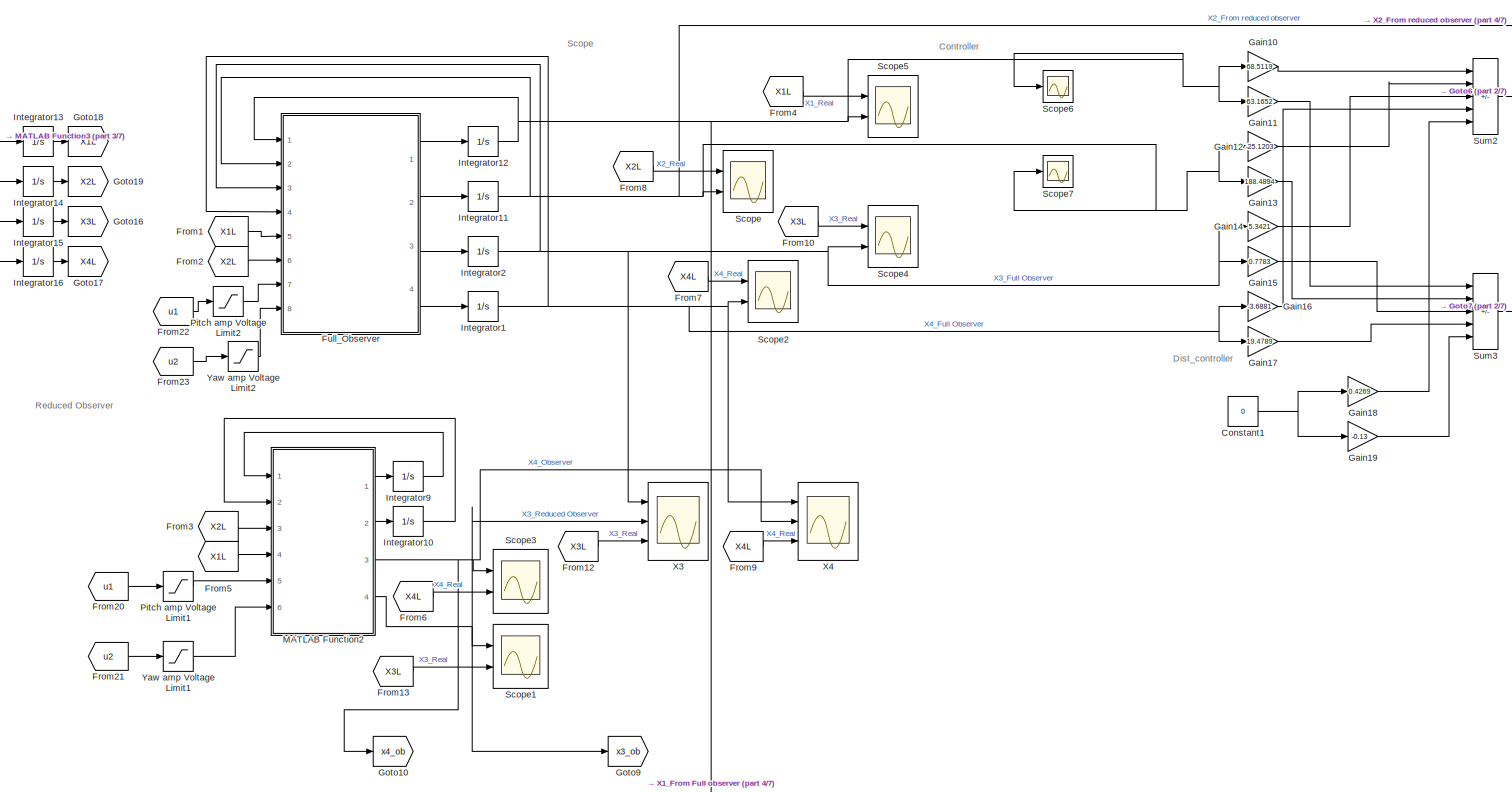
[diagram: root canvas - part 1/7, top center region]
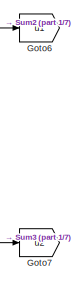
[diagram: root canvas - part 2/7, top right region]
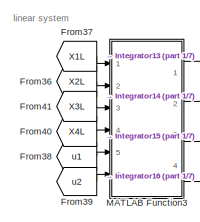
[diagram: root canvas - part 3/7, top left region]
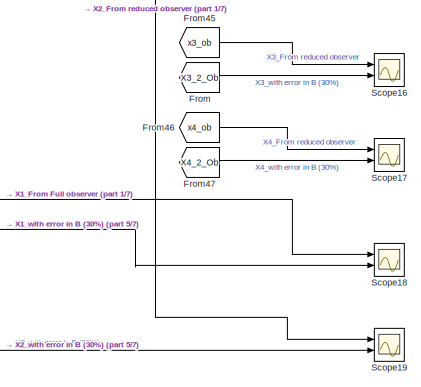
[diagram: root canvas - part 4/7, middle right region]
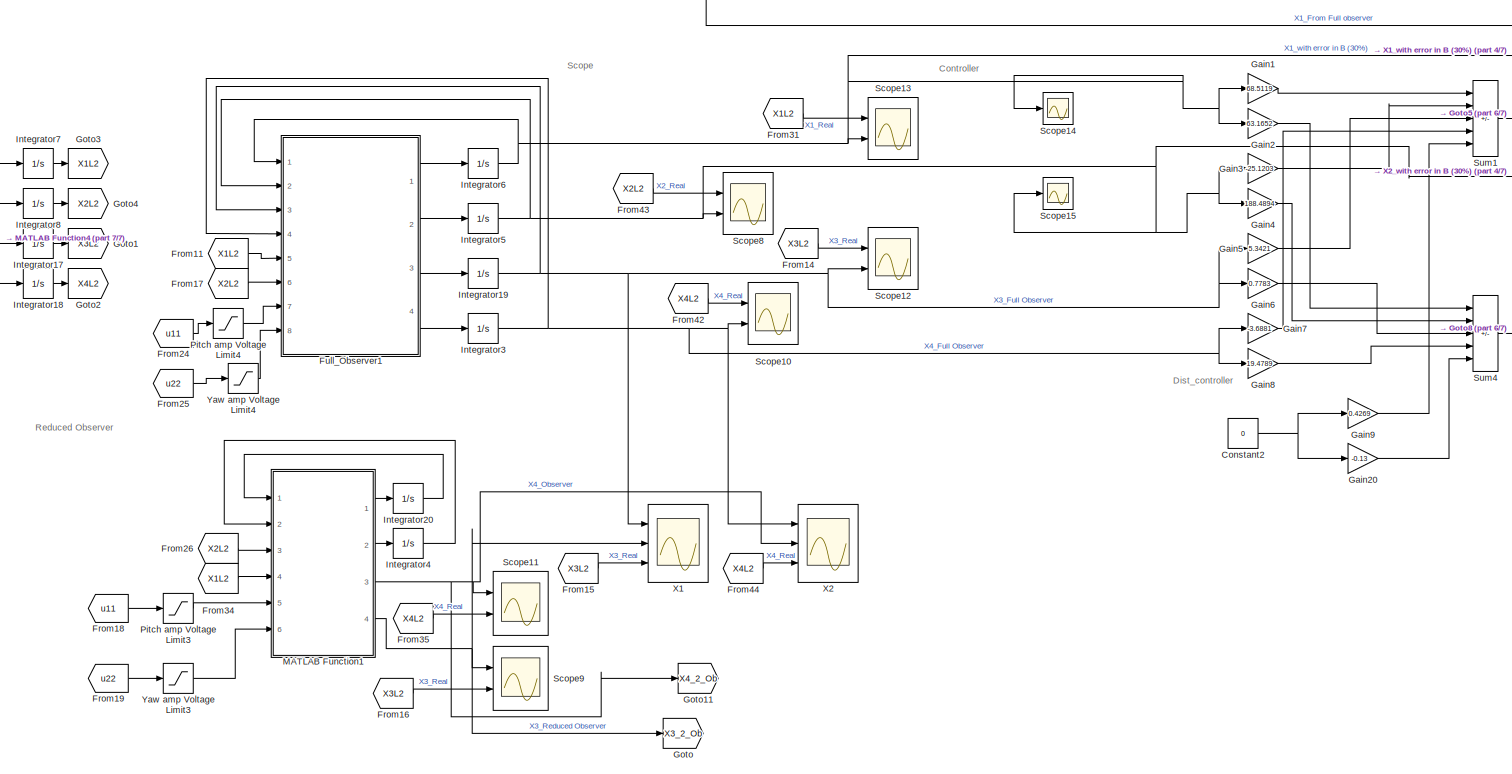
[diagram: root canvas - part 5/7, bottom center region]
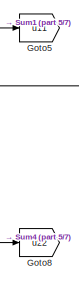
[diagram: root canvas - part 6/7, middle right region]
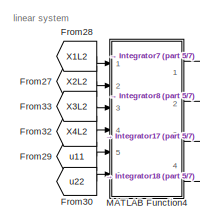
[diagram: root canvas - part 7/7, middle left region]
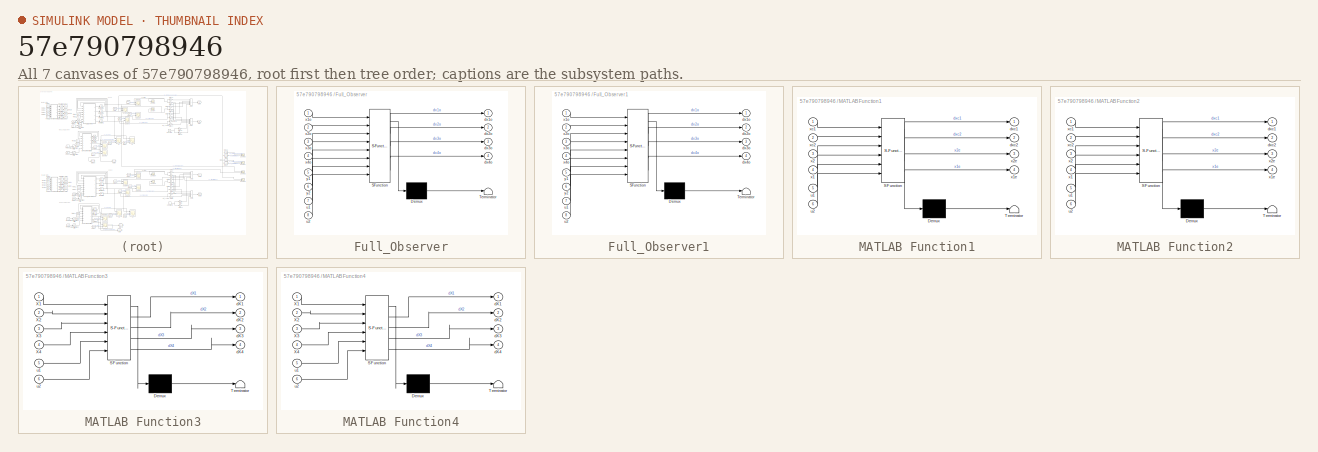
[diagram: thumbnail index - all 7 canvases of the model, root first then tree order]
MODEL slx_57e790798946
KIND model
CONFIG AbsTol = auto
CONFIG EnableMultiTasking = off
CONFIG FixedStep = auto
CONFIG InitFcn = % NOTE: If using VoltPAQ-X1, make sure both Gain switches are set to 3.\nK_AMP = 3;\n% Maximum Output Voltage (V): YAW limited to 15 V. PITCH limited to 24 V.\nVMAX_AMP_P = 24;\nVMAX_AMP_Y = 15;\n% Initial Angle of Pitch (rad)\ntheta_0 = -40.5*pi/180;\n\ng = 9.81;\n\n% Pitch and Yaw Motor Armature Resistance (Ohm)\nR_m_p = 0.83;\nR_m_y = 1.60;\n\n% Pitch and Yaw Motor Current-Torque Constant (N.m/A)\nK_t_p = 0.0...<+2432ch>
CONFIG MaxStep = auto
CONFIG MinStep = auto
CONFIG RelTol = 1e-3
CONFIG SampleTimeConstraint = Unconstrained
CONFIG SolverName = VariableStepAuto
CONFIG StartTime = 0.0
CONFIG StopTime = 10.0
BLOCK [Constant] Constant1
  Value = 0
BLOCK [Constant] Constant2
  Value = 0
BLOCK [From] From
  GotoTag = X3_2_Ob
BLOCK [From] From1
  GotoTag = X1L
BLOCK [From] From10
  GotoTag = X3L
BLOCK [From] From11
  GotoTag = X1L2
BLOCK [From] From12
  GotoTag = X3L
BLOCK [From] From13
  GotoTag = X3L
BLOCK [From] From14
  GotoTag = X3L2
BLOCK [From] From15
  GotoTag = X3L2
BLOCK [From] From16
  GotoTag = X3L2
BLOCK [From] From17
  GotoTag = X2L2
BLOCK [From] From18
  GotoTag = u11
BLOCK [From] From19
  GotoTag = u22
BLOCK [From] From2
  GotoTag = X2L
BLOCK [From] From20
  GotoTag = u1
BLOCK [From] From21
  GotoTag = u2
BLOCK [From] From22
  GotoTag = u1
BLOCK [From] From23
  GotoTag = u2
BLOCK [From] From24
  GotoTag = u11
BLOCK [From] From25
  GotoTag = u22
BLOCK [From] From26
  GotoTag = X2L2
BLOCK [From] From27
  GotoTag = X2L2
BLOCK [From] From28
  GotoTag = X1L2
BLOCK [From] From29
  GotoTag = u11
BLOCK [From] From3
  GotoTag = X2L
BLOCK [From] From30
  GotoTag = u22
BLOCK [From] From31
  GotoTag = X1L2
BLOCK [From] From32
  GotoTag = X4L2
BLOCK [From] From33
  GotoTag = X3L2
BLOCK [From] From34
  GotoTag = X1L2
BLOCK [From] From35
  GotoTag = X4L2
BLOCK [From] From36
  GotoTag = X2L
BLOCK [From] From37
  GotoTag = X1L
BLOCK [From] From38
  GotoTag = u1
BLOCK [From] From39
  GotoTag = u2
BLOCK [From] From4
  GotoTag = X1L
BLOCK [From] From40
  GotoTag = X4L
BLOCK [From] From41
  GotoTag = X3L
BLOCK [From] From42
  GotoTag = X4L2
BLOCK [From] From43
  GotoTag = X2L2
BLOCK [From] From44
  GotoTag = X4L2
BLOCK [From] From45
  GotoTag = x3_ob
BLOCK [From] From46
  GotoTag = x4_ob
BLOCK [From] From47
  GotoTag = X4_2_Ob
  NameLocation = left
BLOCK [From] From5
  GotoTag = X1L
BLOCK [From] From6
  GotoTag = X4L
BLOCK [From] From7
  GotoTag = X4L
BLOCK [From] From8
  GotoTag = X2L
BLOCK [From] From9
  GotoTag = X4L
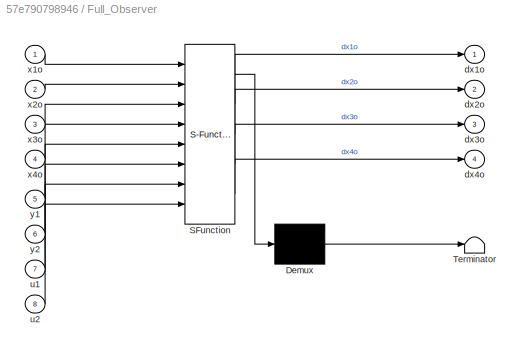
BLOCK [SubSystem] Full_Observer
  ErrorFcn = Stateflow.Translate.translate
  PermitHierarchicalResolution = ExplicitOnly
  Ports = [8, 4]
  RequestExecContextInheritance = off
  SFBlockType = MATLAB Function
  TreatAsAtomicUnit = on
BLOCK [Demux] Full_Observer/ Demux 
  Outputs = 1
  Ports = [1, 1]
BLOCK [S-Function] Full_Observer/ SFunction 
  EnableBusSupport = on
  FunctionName = sf_sfun
  PortCounts = [8 5]
  Ports = [8, 5]
  SFcnIsStateOwnerBlock = off
  SFunctionDeploymentMode = off
  Tag = Stateflow S-Function 13
BLOCK [Terminator] Full_Observer/ Terminator 
BLOCK [Outport] Full_Observer/dx1o
  VectorParamsAs1DForOutWhenUnconnected = off
BLOCK [Outport] Full_Observer/dx2o
  Port = 2
BLOCK [Outport] Full_Observer/dx3o
  Port = 3
BLOCK [Outport] Full_Observer/dx4o
  Port = 4
BLOCK [Inport] Full_Observer/u1
  Port = 7
BLOCK [Inport] Full_Observer/u2
  Port = 8
BLOCK [Inport] Full_Observer/x1o
BLOCK [Inport] Full_Observer/x2o
  Port = 2
BLOCK [Inport] Full_Observer/x3o
  Port = 3
BLOCK [Inport] Full_Observer/x4o
  Port = 4
BLOCK [Inport] Full_Observer/y1
  Port = 5
BLOCK [Inport] Full_Observer/y2
  Port = 6
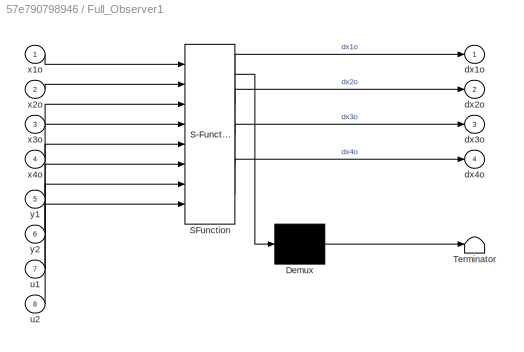
BLOCK [SubSystem] Full_Observer1
  ErrorFcn = Stateflow.Translate.translate
  PermitHierarchicalResolution = ExplicitOnly
  Ports = [8, 4]
  RequestExecContextInheritance = off
  SFBlockType = MATLAB Function
  TreatAsAtomicUnit = on
BLOCK [Demux] Full_Observer1/ Demux 
  Outputs = 1
  Ports = [1, 1]
BLOCK [S-Function] Full_Observer1/ SFunction 
  EnableBusSupport = on
  FunctionName = sf_sfun
  PortCounts = [8 5]
  Ports = [8, 5]
  SFcnIsStateOwnerBlock = off
  SFunctionDeploymentMode = off
  Tag = Stateflow S-Function 1
BLOCK [Terminator] Full_Observer1/ Terminator 
BLOCK [Outport] Full_Observer1/dx1o
  VectorParamsAs1DForOutWhenUnconnected = off
BLOCK [Outport] Full_Observer1/dx2o
  Port = 2
BLOCK [Outport] Full_Observer1/dx3o
  Port = 3
BLOCK [Outport] Full_Observer1/dx4o
  Port = 4
BLOCK [Inport] Full_Observer1/u1
  Port = 7
BLOCK [Inport] Full_Observer1/u2
  Port = 8
BLOCK [Inport] Full_Observer1/x1o
BLOCK [Inport] Full_Observer1/x2o
  Port = 2
BLOCK [Inport] Full_Observer1/x3o
  Port = 3
BLOCK [Inport] Full_Observer1/x4o
  Port = 4
BLOCK [Inport] Full_Observer1/y1
  Port = 5
BLOCK [Inport] Full_Observer1/y2
  Port = 6
BLOCK [Gain] Gain1
  Gain = 68.5119
BLOCK [Gain] Gain10
  Gain = 68.5119
BLOCK [Gain] Gain11
  Gain = 63.1652
BLOCK [Gain] Gain12
  Gain = -25.1203
BLOCK [Gain] Gain13
  Gain = 188.4894
BLOCK [Gain] Gain14
  Gain = 5.3421
BLOCK [Gain] Gain15
  Gain = 0.7783
BLOCK [Gain] Gain16
  Gain = -3.6881
BLOCK [Gain] Gain17
  Gain = 19.4789
BLOCK [Gain] Gain18
  Gain = 0.4269
BLOCK [Gain] Gain19
  Gain = -0.13
BLOCK [Gain] Gain2
  Gain = 63.1652
BLOCK [Gain] Gain20
  Gain = -0.13
BLOCK [Gain] Gain3
  Gain = -25.1203
BLOCK [Gain] Gain4
  Gain = 188.4894
BLOCK [Gain] Gain5
  Gain = 5.3421
BLOCK [Gain] Gain6
  Gain = 0.7783
BLOCK [Gain] Gain7
  Gain = -3.6881
BLOCK [Gain] Gain8
  Gain = 19.4789
BLOCK [Gain] Gain9
  Gain = 0.4269
BLOCK [Goto] Goto
  GotoTag = X3_2_Ob
BLOCK [Goto] Goto1
  GotoTag = X3L2
BLOCK [Goto] Goto10
  GotoTag = x4_ob
BLOCK [Goto] Goto11
  GotoTag = X4_2_Ob
BLOCK [Goto] Goto16
  GotoTag = X3L
BLOCK [Goto] Goto17
  GotoTag = X4L
BLOCK [Goto] Goto18
  GotoTag = X1L
BLOCK [Goto] Goto19
  GotoTag = X2L
BLOCK [Goto] Goto2
  GotoTag = X4L2
BLOCK [Goto] Goto3
  GotoTag = X1L2
BLOCK [Goto] Goto4
  GotoTag = X2L2
BLOCK [Goto] Goto5
  GotoTag = u11
BLOCK [Goto] Goto6
  GotoTag = u1
BLOCK [Goto] Goto7
  GotoTag = u2
BLOCK [Goto] Goto8
  GotoTag = u22
BLOCK [Goto] Goto9
  GotoTag = x3_ob
BLOCK [Integrator] Integrator1
  Ports = [1, 1]
BLOCK [Integrator] Integrator10
  Ports = [1, 1]
BLOCK [Integrator] Integrator11
  Ports = [1, 1]
BLOCK [Integrator] Integrator12
  Ports = [1, 1]
BLOCK [Integrator] Integrator13
  LowerSaturationLimit = -40.5*pi/180
  Ports = [1, 1]
  UpperSaturationLimit = 40.5*pi/180
BLOCK [Integrator] Integrator14
  Ports = [1, 1]
BLOCK [Integrator] Integrator15
  InitialCondition = 5
  Ports = [1, 1]
BLOCK [Integrator] Integrator16
  Ports = [1, 1]
BLOCK [Integrator] Integrator17
  InitialCondition = 5
  Ports = [1, 1]
BLOCK [Integrator] Integrator18
  Ports = [1, 1]
BLOCK [Integrator] Integrator19
  Ports = [1, 1]
BLOCK [Integrator] Integrator2
  Ports = [1, 1]
BLOCK [Integrator] Integrator20
  Ports = [1, 1]
BLOCK [Integrator] Integrator3
  Ports = [1, 1]
BLOCK [Integrator] Integrator4
  Ports = [1, 1]
BLOCK [Integrator] Integrator5
  Ports = [1, 1]
BLOCK [Integrator] Integrator6
  Ports = [1, 1]
BLOCK [Integrator] Integrator7
  LowerSaturationLimit = -40.5*pi/180
  Ports = [1, 1]
  UpperSaturationLimit = 40.5*pi/180
BLOCK [Integrator] Integrator8
  Ports = [1, 1]
BLOCK [Integrator] Integrator9
  Ports = [1, 1]
BLOCK [SubSystem] MATLAB Function1
  ErrorFcn = Stateflow.Translate.translate
  PermitHierarchicalResolution = ExplicitOnly
  Ports = [6, 4]
  RequestExecContextInheritance = off
  SFBlockType = MATLAB Function
  TreatAsAtomicUnit = on
BLOCK [Demux] MATLAB Function1/ Demux 
  Outputs = 1
  Ports = [1, 1]
BLOCK [S-Function] MATLAB Function1/ SFunction 
  EnableBusSupport = on
  FunctionName = sf_sfun
  PortCounts = [6 5]
  Ports = [6, 5]
  SFcnIsStateOwnerBlock = off
  SFunctionDeploymentMode = off
  Tag = Stateflow S-Function 4
BLOCK [Terminator] MATLAB Function1/ Terminator 
BLOCK [Outport] MATLAB Function1/dxc1
BLOCK [Outport] MATLAB Function1/dxc2
  Port = 2
BLOCK [Inport] MATLAB Function1/u1
  Port = 5
BLOCK [Inport] MATLAB Function1/u2
  Port = 6
BLOCK [Inport] MATLAB Function1/x1
  Port = 4
BLOCK [Outport] MATLAB Function1/x1e
  Port = 4
BLOCK [Inport] MATLAB Function1/x2
  Port = 3
BLOCK [Outport] MATLAB Function1/x2e
  Port = 3
BLOCK [Inport] MATLAB Function1/xc1
BLOCK [Inport] MATLAB Function1/xc2
  Port = 2
BLOCK [SubSystem] MATLAB Function2
  ErrorFcn = Stateflow.Translate.translate
  PermitHierarchicalResolution = ExplicitOnly
  Ports = [6, 4]
  RequestExecContextInheritance = off
  SFBlockType = MATLAB Function
  TreatAsAtomicUnit = on
BLOCK [Demux] MATLAB Function2/ Demux 
  Outputs = 1
  Ports = [1, 1]
BLOCK [S-Function] MATLAB Function2/ SFunction 
  EnableBusSupport = on
  FunctionName = sf_sfun
  PortCounts = [6 5]
  Ports = [6, 5]
  SFcnIsStateOwnerBlock = off
  SFunctionDeploymentMode = off
  Tag = Stateflow S-Function 2
BLOCK [Terminator] MATLAB Function2/ Terminator 
BLOCK [Outport] MATLAB Function2/dxc1
BLOCK [Outport] MATLAB Function2/dxc2
  Port = 2
BLOCK [Inport] MATLAB Function2/u1
  Port = 5
BLOCK [Inport] MATLAB Function2/u2
  Port = 6
BLOCK [Inport] MATLAB Function2/x1
  Port = 4
BLOCK [Outport] MATLAB Function2/x1e
  Port = 4
BLOCK [Inport] MATLAB Function2/x2
  Port = 3
BLOCK [Outport] MATLAB Function2/x2e
  Port = 3
BLOCK [Inport] MATLAB Function2/xc1
BLOCK [Inport] MATLAB Function2/xc2
  Port = 2
BLOCK [SubSystem] MATLAB Function3
  ErrorFcn = Stateflow.Translate.translate
  PermitHierarchicalResolution = ExplicitOnly
  Ports = [6, 4]
  RequestExecContextInheritance = off
  SFBlockType = MATLAB Function
  TreatAsAtomicUnit = on
BLOCK [Demux] MATLAB Function3/ Demux 
  Outputs = 1
  Ports = [1, 1]
BLOCK [S-Function] MATLAB Function3/ SFunction 
  EnableBusSupport = on
  FunctionName = sf_sfun
  PortCounts = [6 5]
  Ports = [6, 5]
  SFcnIsStateOwnerBlock = off
  SFunctionDeploymentMode = off
  Tag = Stateflow S-Function 3
BLOCK [Terminator] MATLAB Function3/ Terminator 
BLOCK [Inport] MATLAB Function3/X1
BLOCK [Inport] MATLAB Function3/X2
  Port = 2
BLOCK [Inport] MATLAB Function3/X3
  Port = 3
BLOCK [Inport] MATLAB Function3/X4
  Port = 4
BLOCK [Outport] MATLAB Function3/dX1
BLOCK [Outport] MATLAB Function3/dX2
  Port = 2
BLOCK [Outport] MATLAB Function3/dX3
  Port = 3
BLOCK [Outport] MATLAB Function3/dX4
  Port = 4
BLOCK [Inport] MATLAB Function3/u1
  Port = 5
BLOCK [Inport] MATLAB Function3/u2
  Port = 6
BLOCK [SubSystem] MATLAB Function4
  ErrorFcn = Stateflow.Translate.translate
  PermitHierarchicalResolution = ExplicitOnly
  Ports = [6, 4]
  RequestExecContextInheritance = off
  SFBlockType = MATLAB Function
  TreatAsAtomicUnit = on
BLOCK [Demux] MATLAB Function4/ Demux 
  Outputs = 1
  Ports = [1, 1]
BLOCK [S-Function] MATLAB Function4/ SFunction 
  EnableBusSupport = on
  FunctionName = sf_sfun
  PortCounts = [6 5]
  Ports = [6, 5]
  SFcnIsStateOwnerBlock = off
  SFunctionDeploymentMode = off
  Tag = Stateflow S-Function 5
BLOCK [Terminator] MATLAB Function4/ Terminator 
BLOCK [Inport] MATLAB Function4/X1
BLOCK [Inport] MATLAB Function4/X2
  Port = 2
BLOCK [Inport] MATLAB Function4/X3
  Port = 3
BLOCK [Inport] MATLAB Function4/X4
  Port = 4
BLOCK [Outport] MATLAB Function4/dX1
BLOCK [Outport] MATLAB Function4/dX2
  Port = 2
BLOCK [Outport] MATLAB Function4/dX3
  Port = 3
BLOCK [Outport] MATLAB Function4/dX4
  Port = 4
BLOCK [Inport] MATLAB Function4/u1
  Port = 5
BLOCK [Inport] MATLAB Function4/u2
  Port = 6
BLOCK [Saturate] Pitch amp Voltage Limit1
  LowerLimit = - VMAX_AMP_P
  UpperLimit = VMAX_AMP_P
BLOCK [Saturate] Pitch amp Voltage Limit2
  LowerLimit = - VMAX_AMP_P
  UpperLimit = VMAX_AMP_P
BLOCK [Saturate] Pitch amp Voltage Limit3
  LowerLimit = - VMAX_AMP_P
  UpperLimit = VMAX_AMP_P
BLOCK [Saturate] Pitch amp Voltage Limit4
  LowerLimit = - VMAX_AMP_P
  UpperLimit = VMAX_AMP_P
BLOCK [Scope] Scope
  Floating = off
  NumInputPorts = 2
  Ports = [2]
  ScopeSpecificationString = Simulink.scopes.TimeScopeBlockCfg('CurrentConfiguration', extmgr.ConfigurationSet(extmgr.Configuration('Core','General UI',true),extmgr.Configuration('Core','Source UI',true),extmgr.Configuration('Sources','WiredSimulink',true,'DataLoggingVariableName','ScopeData1'),extmgr.Configuration('Visuals','Time Domain',true,'SerializedDisplays',{struct('MinYLimReal','-0.06954','MaxYLimReal','0.00907','YLab...<+1728ch>
BLOCK [Scope] Scope1
  Floating = off
  NumInputPorts = 2
  Ports = [2]
  ScopeSpecificationString = Simulink.scopes.TimeScopeBlockCfg('CurrentConfiguration', extmgr.ConfigurationSet(extmgr.Configuration('Core','General UI',true),extmgr.Configuration('Core','Source UI',true),extmgr.Configuration('Sources','WiredSimulink',true,'DataLoggingVariableName','ScopeData2'),extmgr.Configuration('Visuals','Time Domain',true,'SerializedDisplays',{struct('MinYLimReal','-3.06943','MaxYLimReal','0.53654','YLab...<+2042ch>
BLOCK [Scope] Scope10
  Floating = off
  NumInputPorts = 2
  Ports = [2]
  ScopeSpecificationString = Simulink.scopes.TimeScopeBlockCfg('CurrentConfiguration', extmgr.ConfigurationSet(extmgr.Configuration('Core','General UI',true,'FigureColor',[1 1 1]),extmgr.Configuration('Core','Source UI',true),extmgr.Configuration('Sources','WiredSimulink',true,'DataLoggingVariableName','ScopeData10'),extmgr.Configuration('Visuals','Time Domain',true,'SerializedDisplays',{struct('MinYLimReal','-0.65012','MaxYL...<+1757ch>
BLOCK [Scope] Scope11
  Floating = off
  NumInputPorts = 2
  Ports = [2]
  ScopeSpecificationString = Simulink.scopes.TimeScopeBlockCfg('CurrentConfiguration', extmgr.ConfigurationSet(extmgr.Configuration('Core','General UI',true),extmgr.Configuration('Core','Source UI',true),extmgr.Configuration('Sources','WiredSimulink',true,'DataLoggingVariableName','ScopeData11'),extmgr.Configuration('Visuals','Time Domain',true,'SerializedDisplays',{struct('MinYLimReal','-0.03291','MaxYLimReal','0.29619','YLa...<+2039ch>
BLOCK [Scope] Scope12
  Floating = off
  NumInputPorts = 2
  Ports = [2]
  ScopeSpecificationString = Simulink.scopes.TimeScopeBlockCfg('CurrentConfiguration', extmgr.ConfigurationSet(extmgr.Configuration('Core','General UI',true,'FigureColor',[1 1 1]),extmgr.Configuration('Core','Source UI',true),extmgr.Configuration('Sources','WiredSimulink',true,'DataLoggingVariableName','ScopeData12'),extmgr.Configuration('Visuals','Time Domain',true,'SerializedDisplays',{struct('MinYLimReal','-2.2894','MaxYLi...<+1753ch>
BLOCK [Scope] Scope13
  Floating = off
  NumInputPorts = 2
  Ports = [2]
  ScopeSpecificationString = Simulink.scopes.TimeScopeBlockCfg('CurrentConfiguration', extmgr.ConfigurationSet(extmgr.Configuration('Core','General UI',true,'FigureColor',[1 1 1]),extmgr.Configuration('Core','Source UI',true),extmgr.Configuration('Sources','WiredSimulink',true,'DataLoggingVariableName','ScopeData13'),extmgr.Configuration('Visuals','Time Domain',true,'SerializedDisplays',{struct('MinYLimReal','-0.02521','MaxYL...<+1763ch>
BLOCK [Scope] Scope14
  Floating = off
  NumInputPorts = 1
  Ports = [1]
  ScopeSpecificationString = Simulink.scopes.TimeScopeBlockCfg('CurrentConfiguration', extmgr.ConfigurationSet(extmgr.Configuration('Core','General UI',true),extmgr.Configuration('Core','Source UI',true),extmgr.Configuration('Sources','WiredSimulink',true,'DataLoggingVariableName','ScopeData14'),extmgr.Configuration('Visuals','Time Domain',true,'SerializedDisplays',{struct('MinYLimReal','-0.51971','MaxYLimReal','0.05775','YLa...<+1371ch>
BLOCK [Scope] Scope15
  Floating = off
  NumInputPorts = 1
  Ports = [1]
  ScopeSpecificationString = Simulink.scopes.TimeScopeBlockCfg('CurrentConfiguration', extmgr.ConfigurationSet(extmgr.Configuration('Core','General UI',true),extmgr.Configuration('Core','Source UI',true),extmgr.Configuration('Sources','WiredSimulink',true,'DataLoggingVariableName','ScopeData15'),extmgr.Configuration('Visuals','Time Domain',true,'SerializedDisplays',{struct('MinYLimReal','-0.09182','MaxYLimReal','2.23242','YLa...<+1371ch>
BLOCK [Scope] Scope16
  Floating = off
  NumInputPorts = 2
  Ports = [2]
  ScopeSpecificationString = Simulink.scopes.TimeScopeBlockCfg('CurrentConfiguration', extmgr.ConfigurationSet(extmgr.Configuration('Core','General UI',true,'FigureColor',[1 1 1]),extmgr.Configuration('Core','Source UI',true),extmgr.Configuration('Sources','WiredSimulink',true,'DataLoggingVariableName','ScopeData20'),extmgr.Configuration('Visuals','Time Domain',true,'SerializedDisplays',{struct('MinYLimReal','-1.82932','MaxYL...<+1741ch>
BLOCK [Scope] Scope17
  Floating = off
  NumInputPorts = 2
  Ports = [2]
  ScopeSpecificationString = Simulink.scopes.TimeScopeBlockCfg('CurrentConfiguration', extmgr.ConfigurationSet(extmgr.Configuration('Core','General UI',true,'FigureColor',[1 1 1]),extmgr.Configuration('Core','Source UI',true),extmgr.Configuration('Sources','WiredSimulink',true,'DataLoggingVariableName','ScopeData21'),extmgr.Configuration('Visuals','Time Domain',true,'SerializedDisplays',{struct('MinYLimReal','-0.64351','MaxYL...<+1741ch>
BLOCK [Scope] Scope18
  Floating = off
  NumInputPorts = 2
  Ports = [2]
  ScopeSpecificationString = Simulink.scopes.TimeScopeBlockCfg('CurrentConfiguration', extmgr.ConfigurationSet(extmgr.Configuration('Core','General UI',true,'FigureColor',[1 1 1]),extmgr.Configuration('Core','Source UI',true),extmgr.Configuration('Sources','WiredSimulink',true,'DataLoggingVariableName','ScopeData22'),extmgr.Configuration('Visuals','Time Domain',true,'SerializedDisplays',{struct('MinYLimReal','-0.02819','MaxYL...<+1738ch>
BLOCK [Scope] Scope19
  Floating = off
  NumInputPorts = 2
  Ports = [2]
  ScopeSpecificationString = Simulink.scopes.TimeScopeBlockCfg('CurrentConfiguration', extmgr.ConfigurationSet(extmgr.Configuration('Core','General UI',true,'FigureColor',[1 1 1]),extmgr.Configuration('Core','Source UI',true),extmgr.Configuration('Sources','WiredSimulink',true,'DataLoggingVariableName','ScopeData23'),extmgr.Configuration('Visuals','Time Domain',true,'SerializedDisplays',{struct('MinYLimReal','-0.06954','MaxYL...<+1741ch>
BLOCK [Scope] Scope2
  Floating = off
  NumInputPorts = 2
  Ports = [2]
  ScopeSpecificationString = Simulink.scopes.TimeScopeBlockCfg('CurrentConfiguration', extmgr.ConfigurationSet(extmgr.Configuration('Core','General UI',true),extmgr.Configuration('Core','Source UI',true),extmgr.Configuration('Sources','WiredSimulink',true,'DataLoggingVariableName','ScopeData3'),extmgr.Configuration('Visuals','Time Domain',true,'SerializedDisplays',{struct('MinYLimReal','-0.60043','MaxYLimReal','0.39732','YLab...<+1722ch>
BLOCK [Scope] Scope3
  Floating = off
  NumInputPorts = 2
  Ports = [2]
  ScopeSpecificationString = Simulink.scopes.TimeScopeBlockCfg('CurrentConfiguration', extmgr.ConfigurationSet(extmgr.Configuration('Core','General UI',true),extmgr.Configuration('Core','Source UI',true),extmgr.Configuration('Sources','WiredSimulink',true,'DataLoggingVariableName','ScopeData4'),extmgr.Configuration('Visuals','Time Domain',true,'SerializedDisplays',{struct('MinYLimReal','-0.03291','MaxYLimReal','0.29619','YLab...<+2038ch>
BLOCK [Scope] Scope4
  Floating = off
  NumInputPorts = 2
  Ports = [2]
  ScopeSpecificationString = Simulink.scopes.TimeScopeBlockCfg('CurrentConfiguration', extmgr.ConfigurationSet(extmgr.Configuration('Core','General UI',true),extmgr.Configuration('Core','Source UI',true),extmgr.Configuration('Sources','WiredSimulink',true,'DataLoggingVariableName','ScopeData5'),extmgr.Configuration('Visuals','Time Domain',true,'SerializedDisplays',{struct('MinYLimReal','-2.11319','MaxYLimReal','5.79035','YLab...<+1719ch>
BLOCK [Scope] Scope5
  Floating = off
  NumInputPorts = 2
  Ports = [2]
  ScopeSpecificationString = Simulink.scopes.TimeScopeBlockCfg('CurrentConfiguration', extmgr.ConfigurationSet(extmgr.Configuration('Core','General UI',true),extmgr.Configuration('Core','Source UI',true),extmgr.Configuration('Sources','WiredSimulink',true,'DataLoggingVariableName','ScopeData6'),extmgr.Configuration('Visuals','Time Domain',true,'SerializedDisplays',{struct('MinYLimReal','-0.02868','MaxYLimReal','0.24974','YLab...<+1726ch>
BLOCK [Scope] Scope6
  Floating = off
  NumInputPorts = 1
  Ports = [1]
  ScopeSpecificationString = Simulink.scopes.TimeScopeBlockCfg('CurrentConfiguration', extmgr.ConfigurationSet(extmgr.Configuration('Core','General UI',true),extmgr.Configuration('Core','Source UI',true),extmgr.Configuration('Sources','WiredSimulink',true,'DataLoggingVariableName','ScopeData7'),extmgr.Configuration('Visuals','Time Domain',true,'SerializedDisplays',{struct('MinYLimReal','-0.51971','MaxYLimReal','0.05775','YLab...<+1370ch>
BLOCK [Scope] Scope7
  Floating = off
  NumInputPorts = 1
  Ports = [1]
  ScopeSpecificationString = Simulink.scopes.TimeScopeBlockCfg('CurrentConfiguration', extmgr.ConfigurationSet(extmgr.Configuration('Core','General UI',true),extmgr.Configuration('Core','Source UI',true),extmgr.Configuration('Sources','WiredSimulink',true,'DataLoggingVariableName','ScopeData8'),extmgr.Configuration('Visuals','Time Domain',true,'SerializedDisplays',{struct('MinYLimReal','-0.09182','MaxYLimReal','2.23242','YLab...<+1370ch>
BLOCK [Scope] Scope8
  Floating = off
  NumInputPorts = 2
  Ports = [2]
  ScopeSpecificationString = Simulink.scopes.TimeScopeBlockCfg('CurrentConfiguration', extmgr.ConfigurationSet(extmgr.Configuration('Core','General UI',true,'FigureColor',[1 1 1]),extmgr.Configuration('Core','Source UI',true),extmgr.Configuration('Sources','WiredSimulink',true,'DataLoggingVariableName','ScopeData16'),extmgr.Configuration('Visuals','Time Domain',true,'SerializedDisplays',{struct('MinYLimReal','-0.06256','MaxYL...<+1765ch>
BLOCK [Scope] Scope9
  Floating = off
  NumInputPorts = 2
  Ports = [2]
  ScopeSpecificationString = Simulink.scopes.TimeScopeBlockCfg('CurrentConfiguration', extmgr.ConfigurationSet(extmgr.Configuration('Core','General UI',true),extmgr.Configuration('Core','Source UI',true),extmgr.Configuration('Sources','WiredSimulink',true,'DataLoggingVariableName','ScopeData17'),extmgr.Configuration('Visuals','Time Domain',true,'SerializedDisplays',{struct('MinYLimReal','-3.06943','MaxYLimReal','0.53654','YLa...<+2043ch>
BLOCK [Sum] Sum1
  IconShape = rectangular
  Inputs = -----
  Ports = [5, 1]
BLOCK [Sum] Sum2
  IconShape = rectangular
  Inputs = -----
  Ports = [5, 1]
BLOCK [Sum] Sum3
  IconShape = rectangular
  Inputs = -----
  Ports = [5, 1]
BLOCK [Sum] Sum4
  IconShape = rectangular
  Inputs = -----
  Ports = [5, 1]
BLOCK [Scope] X1
  Floating = off
  NumInputPorts = 3
  Ports = [3]
  ScopeSpecificationString = Simulink.scopes.TimeScopeBlockCfg('CurrentConfiguration', extmgr.ConfigurationSet(extmgr.Configuration('Core','General UI',true,'FigureColor',[1 1 1]),extmgr.Configuration('Core','Source UI',true),extmgr.Configuration('Sources','WiredSimulink',true,'DataLoggingVariableName','ScopeData18'),extmgr.Configuration('Visuals','Time Domain',true,'SerializedDisplays',{struct('MinYLimReal','-2.2894','MaxYLi...<+2385ch>
BLOCK [Scope] X2
  Floating = off
  NumInputPorts = 3
  Ports = [3]
  ScopeSpecificationString = Simulink.scopes.TimeScopeBlockCfg('CurrentConfiguration', extmgr.ConfigurationSet(extmgr.Configuration('Core','General UI',true,'FigureColor',[1 1 1]),extmgr.Configuration('Core','Source UI',true),extmgr.Configuration('Sources','WiredSimulink',true,'DataLoggingVariableName','ScopeData19'),extmgr.Configuration('Visuals','Time Domain',true,'SerializedDisplays',{struct('MinYLimReal','-0.65012','MaxYL...<+2379ch>
BLOCK [Scope] X3
  Floating = off
  NumInputPorts = 3
  Ports = [3]
  ScopeSpecificationString = Simulink.scopes.TimeScopeBlockCfg('CurrentConfiguration', extmgr.ConfigurationSet(extmgr.Configuration('Core','General UI',true,'FigureColor',[1 1 1]),extmgr.Configuration('Core','Source UI',true),extmgr.Configuration('Sources','WiredSimulink',true,'DataLoggingVariableName','ScopeData9'),extmgr.Configuration('Visuals','Time Domain',true,'SerializedDisplays',{struct('MinYLimReal','-2.12102','MaxYLi...<+2386ch>
BLOCK [Scope] X4
  Floating = off
  NumInputPorts = 3
  Ports = [3]
  ScopeSpecificationString = Simulink.scopes.TimeScopeBlockCfg('CurrentConfiguration', extmgr.ConfigurationSet(extmgr.Configuration('Core','General UI',true,'FigureColor',[1 1 1]),extmgr.Configuration('Core','Source UI',true),extmgr.Configuration('Sources','WiredSimulink',true),extmgr.Configuration('Visuals','Time Domain',true,'SerializedDisplays',{struct('MinYLimReal','-0.61143','MaxYLimReal','0.39854','YLabelReal','X_4','Mi...<+2339ch>
BLOCK [Saturate] Yaw amp Voltage Limit1
  LowerLimit = - VMAX_AMP_Y
  UpperLimit = VMAX_AMP_Y
BLOCK [Saturate] Yaw amp Voltage Limit2
  LowerLimit = - VMAX_AMP_Y
  UpperLimit = VMAX_AMP_Y
BLOCK [Saturate] Yaw amp Voltage Limit3
  LowerLimit = - VMAX_AMP_Y
  UpperLimit = VMAX_AMP_Y
BLOCK [Saturate] Yaw amp Voltage Limit4
  LowerLimit = - VMAX_AMP_Y
  UpperLimit = VMAX_AMP_Y
ANNOTATION (root): Controller
ANNOTATION (root): Dist_controller
ANNOTATION (root): Reduced Observer
ANNOTATION (root): Scope
ANNOTATION (root): linear system
NET Constant1:1 -> Gain18:1, Gain19:1
NET Constant2:1 -> Gain20:1, Gain9:1
LINE From10:1 -> Scope4:1
LINE From11:1 -> Full_Observer1:5
LINE From12:1 -> X3:3
LINE From13:1 -> Scope1:2
LINE From14:1 -> Scope12:1
LINE From15:1 -> X1:3
LINE From16:1 -> Scope9:2
LINE From17:1 -> Full_Observer1:6
LINE From18:1 -> Pitch amp Voltage Limit3:1
LINE From19:1 -> Yaw amp Voltage Limit3:1
LINE From1:1 -> Full_Observer:5
LINE From20:1 -> Pitch amp Voltage Limit1:1
LINE From21:1 -> Yaw amp Voltage Limit1:1
LINE From22:1 -> Pitch amp Voltage Limit2:1
LINE From23:1 -> Yaw amp Voltage Limit2:1
LINE From24:1 -> Pitch amp Voltage Limit4:1
LINE From25:1 -> Yaw amp Voltage Limit4:1
LINE From26:1 -> MATLAB Function1:3
LINE From27:1 -> MATLAB Function4:2
LINE From28:1 -> MATLAB Function4:1
LINE From29:1 -> MATLAB Function4:5
LINE From2:1 -> Full_Observer:6
LINE From30:1 -> MATLAB Function4:6
LINE From31:1 -> Scope13:1
LINE From32:1 -> MATLAB Function4:4
LINE From33:1 -> MATLAB Function4:3
LINE From34:1 -> MATLAB Function1:4
LINE From35:1 -> Scope11:2
LINE From36:1 -> MATLAB Function3:2
LINE From37:1 -> MATLAB Function3:1
LINE From38:1 -> MATLAB Function3:5
LINE From39:1 -> MATLAB Function3:6
LINE From3:1 -> MATLAB Function2:3
LINE From40:1 -> MATLAB Function3:4
LINE From41:1 -> MATLAB Function3:3
LINE From42:1 -> Scope10:1
LINE From43:1 -> Scope8:1
LINE From44:1 -> X2:3
LINE From45:1 -> Scope16:1
LINE From46:1 -> Scope17:1
LINE From47:1 -> Scope17:2
LINE From4:1 -> Scope5:1
LINE From5:1 -> MATLAB Function2:4
LINE From6:1 -> Scope3:2
LINE From7:1 -> Scope2:1
LINE From8:1 -> Scope:1
LINE From9:1 -> X4:3
LINE From:1 -> Scope16:2
LINE Full_Observer1:1 -> Integrator6:1
LINE Full_Observer1:2 -> Integrator5:1
LINE Full_Observer1:3 -> Integrator19:1
LINE Full_Observer1:4 -> Integrator3:1
LINE Full_Observer:1 -> Integrator12:1
LINE Full_Observer:2 -> Integrator11:1
LINE Full_Observer:3 -> Integrator2:1
LINE Full_Observer:4 -> Integrator1:1
LINE Gain10:1 -> Sum2:1
LINE Gain11:1 -> Sum3:1
LINE Gain12:1 -> Sum2:2
LINE Gain13:1 -> Sum3:2
LINE Gain14:1 -> Sum2:3
LINE Gain15:1 -> Sum3:3
LINE Gain16:1 -> Sum2:4
LINE Gain17:1 -> Sum3:4
LINE Gain18:1 -> Sum2:5
LINE Gain19:1 -> Sum3:5
LINE Gain1:1 -> Sum1:1
LINE Gain20:1 -> Sum4:5
LINE Gain2:1 -> Sum4:1
LINE Gain3:1 -> Sum1:2
LINE Gain4:1 -> Sum4:2
LINE Gain5:1 -> Sum1:3
LINE Gain6:1 -> Sum4:3
LINE Gain7:1 -> Sum1:4
LINE Gain8:1 -> Sum4:4
LINE Gain9:1 -> Sum1:5
LINE Integrator10:1 -> MATLAB Function2:2
NET Integrator11:1 -> Full_Observer:2, Gain12:1, Gain13:1, Scope19:1, Scope7:1, Scope:2
NET Integrator12:1 -> Full_Observer:1, Gain10:1, Gain11:1, Scope18:1, Scope5:2, Scope6:1
LINE Integrator13:1 -> Goto18:1
LINE Integrator14:1 -> Goto19:1
LINE Integrator15:1 -> Goto16:1
LINE Integrator16:1 -> Goto17:1
LINE Integrator17:1 -> Goto1:1
LINE Integrator18:1 -> Goto2:1
NET Integrator19:1 -> Full_Observer1:3, Gain5:1, Gain6:1, Scope12:2, X1:1
NET Integrator1:1 -> Full_Observer:4, Gain16:1, Gain17:1, Scope2:2, X4:1
LINE Integrator20:1 -> MATLAB Function1:1
NET Integrator2:1 -> Full_Observer:3, Gain14:1, Gain15:1, Scope4:2, X3:1
NET Integrator3:1 -> Full_Observer1:4, Gain7:1, Gain8:1, Scope10:2, X2:1
LINE Integrator4:1 -> MATLAB Function1:2
NET Integrator5:1 -> Full_Observer1:2, Gain3:1, Gain4:1, Scope15:1, Scope19:2, Scope8:2
NET Integrator6:1 -> Full_Observer1:1, Gain1:1, Gain2:1, Scope13:2, Scope14:1, Scope18:2
LINE Integrator7:1 -> Goto3:1
LINE Integrator8:1 -> Goto4:1
LINE Integrator9:1 -> MATLAB Function2:1
LINE MATLAB Function1:1 -> Integrator20:1
LINE MATLAB Function1:2 -> Integrator4:1
NET MATLAB Function1:3 -> Goto11:1, Scope11:1, X2:2
NET MATLAB Function1:4 -> Goto:1, Scope9:1, X1:2
LINE MATLAB Function2:1 -> Integrator9:1
LINE MATLAB Function2:2 -> Integrator10:1
NET MATLAB Function2:3 -> Goto10:1, Scope3:1, X4:2
NET MATLAB Function2:4 -> Goto9:1, Scope1:1, X3:2
LINE MATLAB Function3:1 -> Integrator13:1
LINE MATLAB Function3:2 -> Integrator14:1
LINE MATLAB Function3:3 -> Integrator15:1
LINE MATLAB Function3:4 -> Integrator16:1
LINE MATLAB Function4:1 -> Integrator7:1
LINE MATLAB Function4:2 -> Integrator8:1
LINE MATLAB Function4:3 -> Integrator17:1
LINE MATLAB Function4:4 -> Integrator18:1
LINE Pitch amp Voltage Limit1:1 -> MATLAB Function2:5
LINE Pitch amp Voltage Limit2:1 -> Full_Observer:7
LINE Pitch amp Voltage Limit3:1 -> MATLAB Function1:5
LINE Pitch amp Voltage Limit4:1 -> Full_Observer1:7
LINE Sum1:1 -> Goto5:1
LINE Sum2:1 -> Goto6:1
LINE Sum3:1 -> Goto7:1
LINE Sum4:1 -> Goto8:1
LINE Yaw amp Voltage Limit1:1 -> MATLAB Function2:6
LINE Yaw amp Voltage Limit2:1 -> Full_Observer:8
LINE Yaw amp Voltage Limit3:1 -> MATLAB Function1:6
LINE Yaw amp Voltage Limit4:1 -> Full_Observer1:8
note: NET lines group one-source signal fan-out (src -> all destinations, sorted); 1:1 wires keep LINE
CHART Full_Observer1 states=1 transitions=1
  STATE_LABEL 'eML_blk_kernel()'
  STATE_LABEL 'SCRIPT:\nfunction [dx1o,dx2o,dx3o,dx4o] = Full_Observer(x1o,x2o,x3o,x4o,y1,y2,u1,u2)\n\nAo=[      0         0    1.0000         0\n         0         0         0    1.0000\n         0         0   -9.2751         0\n         0         0         0   -3.4955];\n     \nBo=[      0         0\n         0         0\n    2.3667    0.0790\n    0.2410    0.7913];\nC=[  1     0     0     0\n     0     1     0     0];\nu=[...<+270ch>'
CHART MATLAB Function2 states=1 transitions=1
  STATE_LABEL 'eML_blk_kernel()'
  STATE_LABEL 'SCRIPT:\nfunction [dxc1,dxc2,x2e,x1e] = Re_Observer(xc1,xc2,x2,x1,u1,u2)\n\nA=[      0         0    1.0000         0\n         0         0         0    1.0000\n         0         0   -9.2751         0\n         0         0         0   -3.4955];\n     \nB=[      0         0\n         0         0\n    2.3667    0.0790\n    0.2410    0.7913];\nC=[  1     0     0     0\n     0     1     0     0];\n\n D=[  0     0\n  ...<+401ch>'
CHART MATLAB Function3 states=1 transitions=1
  STATE_LABEL 'eML_blk_kernel()'
  STATE_LABEL "SCRIPT:\nfunction [dX1,dX2,dX3,dX4] = Linear(X1,X2,X3,X4,u1,u2)\n%#codegen\n\nA=[      0         0    1.0000         0\n         0         0         0    1.0000\n         0         0   -9.2751         0\n         0         0         0   -3.4955];\n     \nB=[      0         0\n         0         0\n    2.3667    0.0790\n    0.2410    0.7913];\n\nX = [X1;X2;X3;X4];\nU=[u1,u2].';\ndX = A*X+B*U;\nxd=0;\n\ndX1 = dX(1);\nd...<+41ch>"
CHART MATLAB Function1 states=1 transitions=1
  STATE_LABEL 'eML_blk_kernel()'
  STATE_LABEL 'SCRIPT:\nfunction [dxc1,dxc2,x2e,x1e] = Re_Observer(xc1,xc2,x2,x1,u1,u2)\n\nA=[      0         0    1.0000         0\n         0         0         0    1.0000\n         0         0   -9.2751         0\n         0         0         0   -3.4955];\n     \nB=[      0         0\n         0         0\n    2.3667    0.0790\n    0.2410    0.7913];\nC=[  1     0     0     0\n     0     1     0     0];\n\n D=[  0     0\n  ...<+401ch>'
CHART MATLAB Function4 states=1 transitions=1
  STATE_LABEL 'eML_blk_kernel()'
  STATE_LABEL "SCRIPT:\nfunction [dX1,dX2,dX3,dX4] = Linear(X1,X2,X3,X4,u1,u2)\n%#codegen\n\nA=[      0         0    1.0000         0\n         0         0         0    1.0000\n         0         0   -9.2751         0\n         0         0         0   -3.4955];\n     \nB=[      0         0\n         0         0\n    2.3667    0.0790\n    0.2410    0.7913];\n\nX = [X1;X2;X3;X4];\nU=[u1,u2].';\nB=0.3*B+B;\ndX = A*X+B*U;\nxd=0;\n\ndX1...<+52ch>"
CHART Full_Observer states=1 transitions=1
  STATE_LABEL 'eML_blk_kernel()'
  STATE_LABEL 'SCRIPT:\nfunction [dx1o,dx2o,dx3o,dx4o] = Full_Observer(x1o,x2o,x3o,x4o,y1,y2,u1,u2)\n\nAo=[      0         0    1.0000         0\n         0         0         0    1.0000\n         0         0   -9.2751         0\n         0         0         0   -3.4955];\n     \nBo=[      0         0\n         0         0\n    2.3667    0.0790\n    0.2410    0.7913];\nC=[  1     0     0     0\n     0     1     0     0];\nu=[...<+270ch>'
CHART  states=0 transitions=0
CHART  states=0 transitions=0
CHART  states=0 transitions=0
CHART  states=0 transitions=0
CHART  states=0 transitions=0
CHART  states=0 transitions=0
